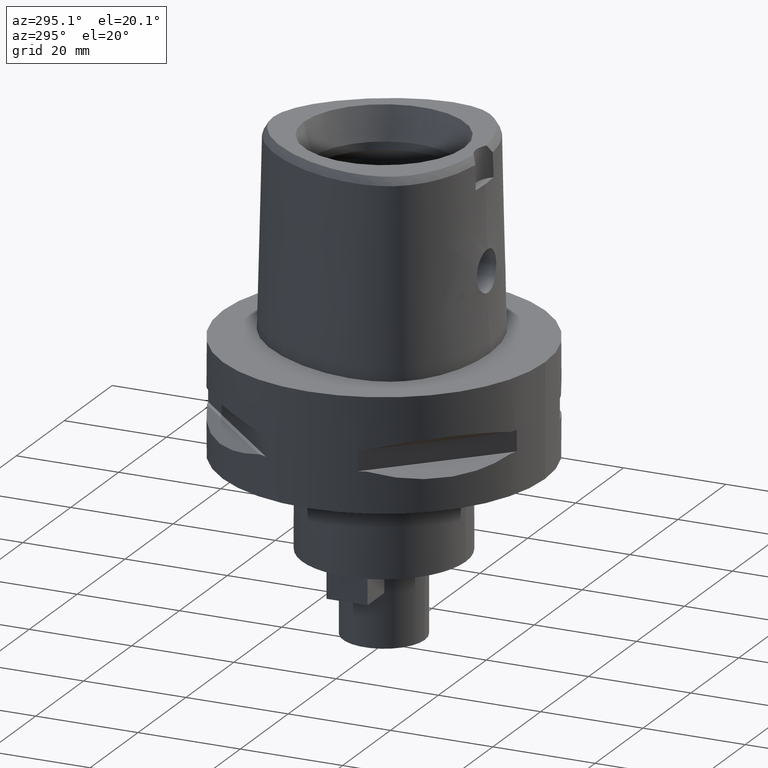
[diagram: clean part render]
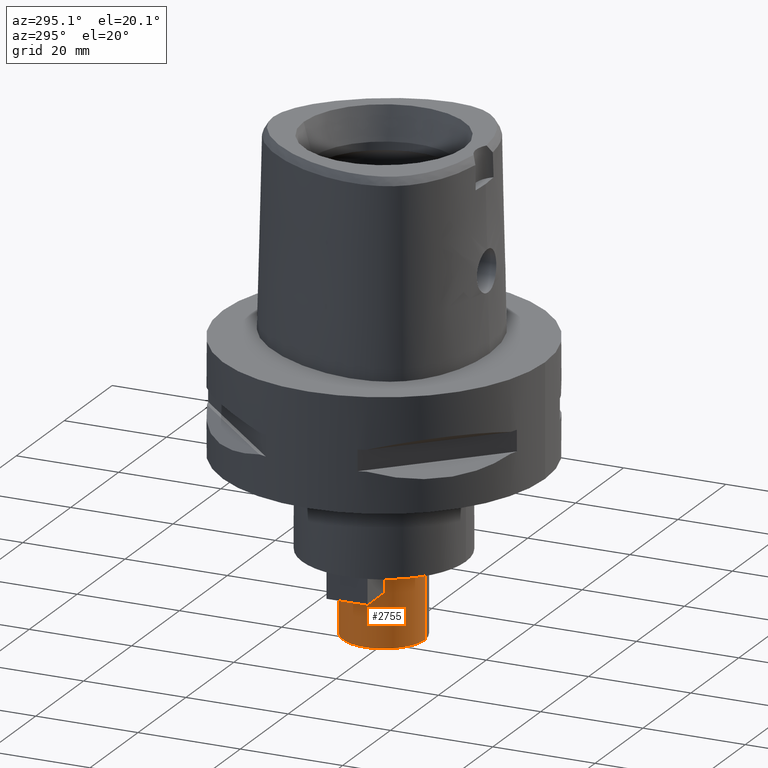
[diagram: same view with one face highlighted and labeled with its STEP entity id]
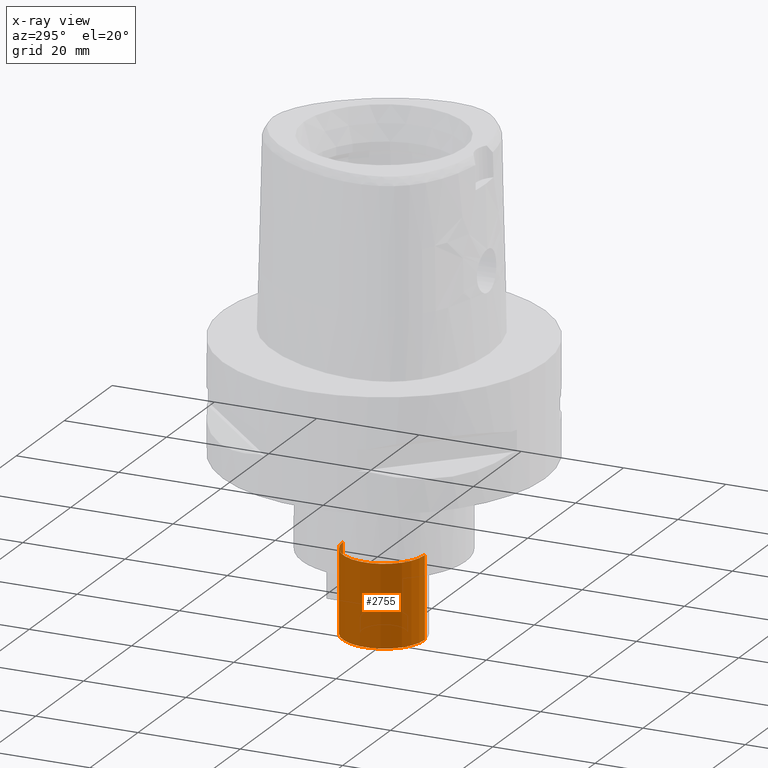
[diagram: x-ray of the same camera — body ghosted, the highlighted face saturated]
A machine part, auxiliary view. The second image highlights one B-rep face of the part: STEP entity #2755.
The next image is the same camera in x-ray: the body ghosted, the highlighted face saturated — about 1% of this face is hidden behind the body in this view.
In plain terms, the highlighted cylindrical surface (partial cylindrical patch) has radius 8 mm, axis along (0, 0, -1).
Its self-contained STEP definition (entity closure, byte-faithful):
#615=CARTESIAN_POINT('',(0.E0,1.258936909523E-14,-4.E1));
#616=DIRECTION('',(0.E0,0.E0,-1.E0));
#617=DIRECTION('',(0.E0,-1.E0,0.E0));
#618=AXIS2_PLACEMENT_3D('',#615,#616,#617);
#659=DIRECTION('',(0.E0,0.E0,-1.E0));
#660=VECTOR('',#659,1.6E1);
#661=CARTESIAN_POINT('',(0.E0,-8.E0,-4.E1));
#662=LINE('',#661,#660);
#666=DIRECTION('',(0.E0,0.E0,-1.E0));
#667=VECTOR('',#666,1.6E1);
#668=CARTESIAN_POINT('',(0.E0,8.E0,-4.E1));
#669=LINE('',#668,#667);
#681=CARTESIAN_POINT('',(0.E0,1.258936909523E-14,-5.6E1));
#682=DIRECTION('',(0.E0,0.E0,1.E0));
#683=DIRECTION('',(0.E0,1.E0,0.E0));
#684=AXIS2_PLACEMENT_3D('',#681,#682,#683);
#1742=CARTESIAN_POINT('',(0.E0,-8.E0,-4.E1));
#1743=CARTESIAN_POINT('',(0.E0,8.E0,-4.E1));
#1744=VERTEX_POINT('',#1742);
#1745=VERTEX_POINT('',#1743);
#1762=CARTESIAN_POINT('',(0.E0,8.E0,-5.6E1));
#1763=VERTEX_POINT('',#1762);
#1764=CARTESIAN_POINT('',(0.E0,-8.E0,-5.6E1));
#1765=VERTEX_POINT('',#1764);
#2741=CARTESIAN_POINT('',(0.E0,1.258936909523E-14,2.8E0));
#2742=DIRECTION('',(0.E0,0.E0,-1.E0));
#2743=DIRECTION('',(0.E0,-1.E0,0.E0));
#2744=AXIS2_PLACEMENT_3D('',#2741,#2742,#2743);
#2745=CYLINDRICAL_SURFACE('',#2744,8.E0);
#2747=ORIENTED_EDGE('',*,*,#2746,.F.);
#2748=ORIENTED_EDGE('',*,*,#2714,.F.);
#2750=ORIENTED_EDGE('',*,*,#2749,.T.);
#2752=ORIENTED_EDGE('',*,*,#2751,.F.);
#2753=EDGE_LOOP('',(#2747,#2748,#2750,#2752));
#2754=FACE_OUTER_BOUND('',#2753,.F.);
#619=CIRCLE('',#618,8.E0);
#685=CIRCLE('',#684,8.E0);
#2714=EDGE_CURVE('',#1744,#1745,#619,.T.);
#2746=EDGE_CURVE('',#1745,#1763,#669,.T.);
#2749=EDGE_CURVE('',#1744,#1765,#662,.T.);
#2751=EDGE_CURVE('',#1763,#1765,#685,.T.);
#2755=ADVANCED_FACE('',(#2754),#2745,.T.);